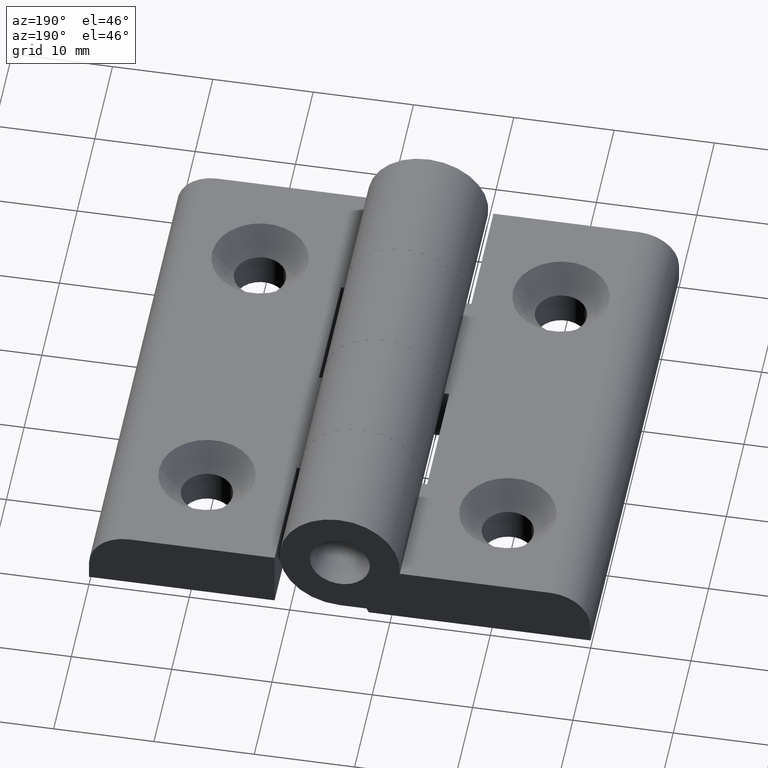
[diagram: clean part render]
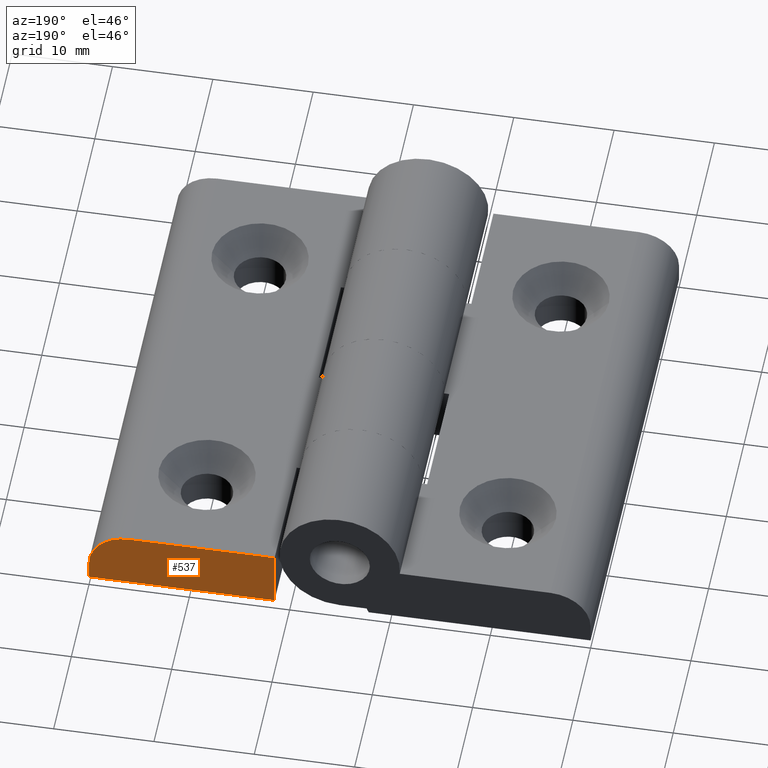
[diagram: same view with one face highlighted and labeled with its STEP entity id]
A machine part, auxiliary view. The second image highlights one B-rep face of the part: STEP entity #537.
In plain terms, the highlighted planar face has unit normal (0, -1, 0).
Its self-contained STEP definition (entity closure, byte-faithful):
#9=CARTESIAN_POINT('',(5.999988002817645,40.000020000039058,5.999987994638556));
#10=VERTEX_POINT('',#9);
#17=CARTESIAN_POINT('',(-8.499982999967415,40.000020000039058,5.999987994638556));
#18=VERTEX_POINT('',#17);
#19=CARTESIAN_POINT('',(5.999988002817645,40.000020000039058,5.999987994638556));
#20=DIRECTION('',(-1.0,0.0,0.0));
#21=VECTOR('',#20,14.499971002785060);
#22=LINE('',#19,#21);
#23=EDGE_CURVE('',#10,#18,#22,.T.);
#357=CARTESIAN_POINT('',(-8.499982999967415,40.000020000039058,-2.449295E-015));
#358=VERTEX_POINT('',#357);
#365=CARTESIAN_POINT('',(9.999979999960033,40.000020000039058,-2.449295E-015));
#366=VERTEX_POINT('',#365);
#367=CARTESIAN_POINT('',(-8.499982999967415,40.000020000039058,-2.449295E-015));
#368=DIRECTION('',(1.0,0.0,0.0));
#369=VECTOR('',#368,18.499962999927448);
#370=LINE('',#367,#369);
#371=EDGE_CURVE('',#358,#366,#370,.T.);
#436=CARTESIAN_POINT('',(9.999979999960033,40.000020000039058,1.999995997496169));
#437=VERTEX_POINT('',#436);
#438=CARTESIAN_POINT('',(9.999979999960033,40.000020000039058,-2.449295E-015));
#439=DIRECTION('',(0.0,0.0,1.0));
#440=VECTOR('',#439,1.999995997496171);
#441=LINE('',#438,#440);
#442=EDGE_CURVE('',#366,#437,#441,.T.);
#467=CARTESIAN_POINT('',(5.999988002817645,40.000020000039058,1.999995997496169));
#468=DIRECTION('',(0.0,-1.0,6.123234E-017));
#469=DIRECTION('',(1.0,0.0,0.0));
#470=AXIS2_PLACEMENT_3D('',#467,#468,#469);
#471=CIRCLE('',#470,3.999991997142388);
#472=EDGE_CURVE('',#437,#10,#471,.T.);
#520=CARTESIAN_POINT('',(-24.099956535108504,40.000020000039058,-1.250002235270588));
#521=DIRECTION('',(0.0,-1.0,0.0));
#522=DIRECTION('',(1.0,0.0,0.0));
#523=AXIS2_PLACEMENT_3D('',#520,#521,#522);
#524=PLANE('',#523);
#525=ORIENTED_EDGE('',*,*,#371,.F.);
#526=CARTESIAN_POINT('',(-8.499982999967415,40.000020000039058,5.999987994638556));
#527=DIRECTION('',(0.0,0.0,-1.0));
#528=VECTOR('',#527,5.999987994638559);
#529=LINE('',#526,#528);
#530=EDGE_CURVE('',#18,#358,#529,.T.);
#531=ORIENTED_EDGE('',*,*,#530,.F.);
#532=ORIENTED_EDGE('',*,*,#23,.F.);
#533=ORIENTED_EDGE('',*,*,#472,.F.);
#534=ORIENTED_EDGE('',*,*,#442,.F.);
#535=EDGE_LOOP('',(#525,#531,#532,#533,#534));
#536=FACE_OUTER_BOUND('',#535,.T.);
#537=ADVANCED_FACE('',(#536),#524,.F.);